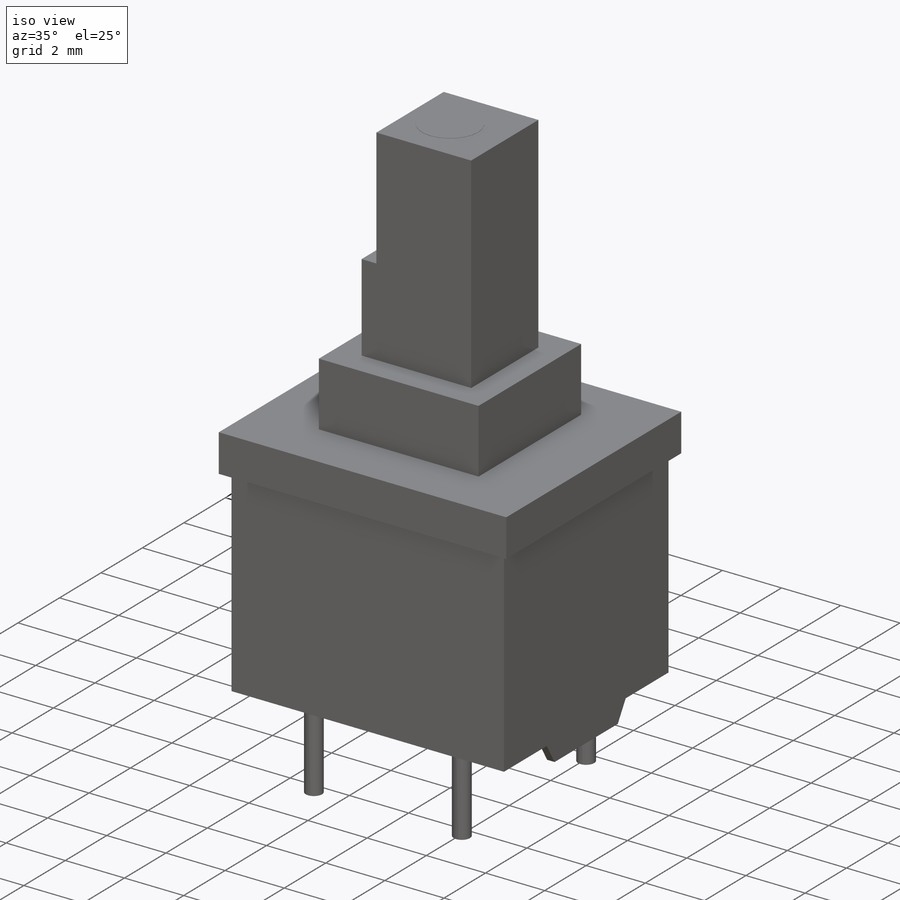
[diagram: iso view]
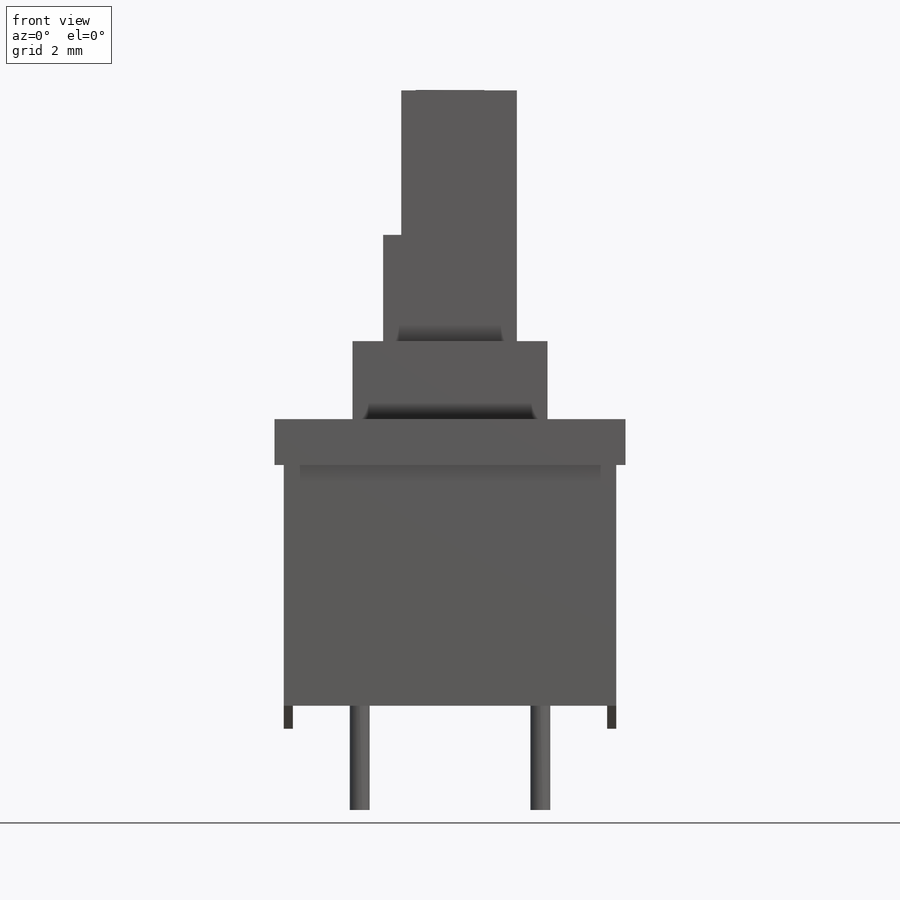
[diagram: front view]
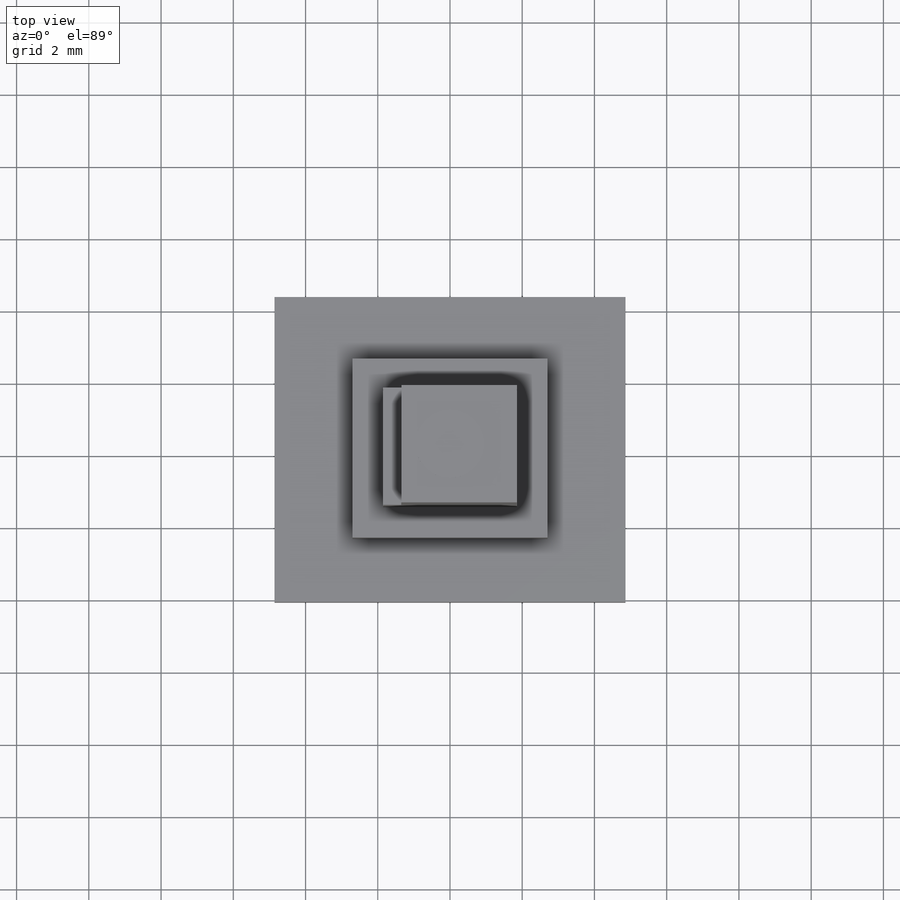
[diagram: top view]
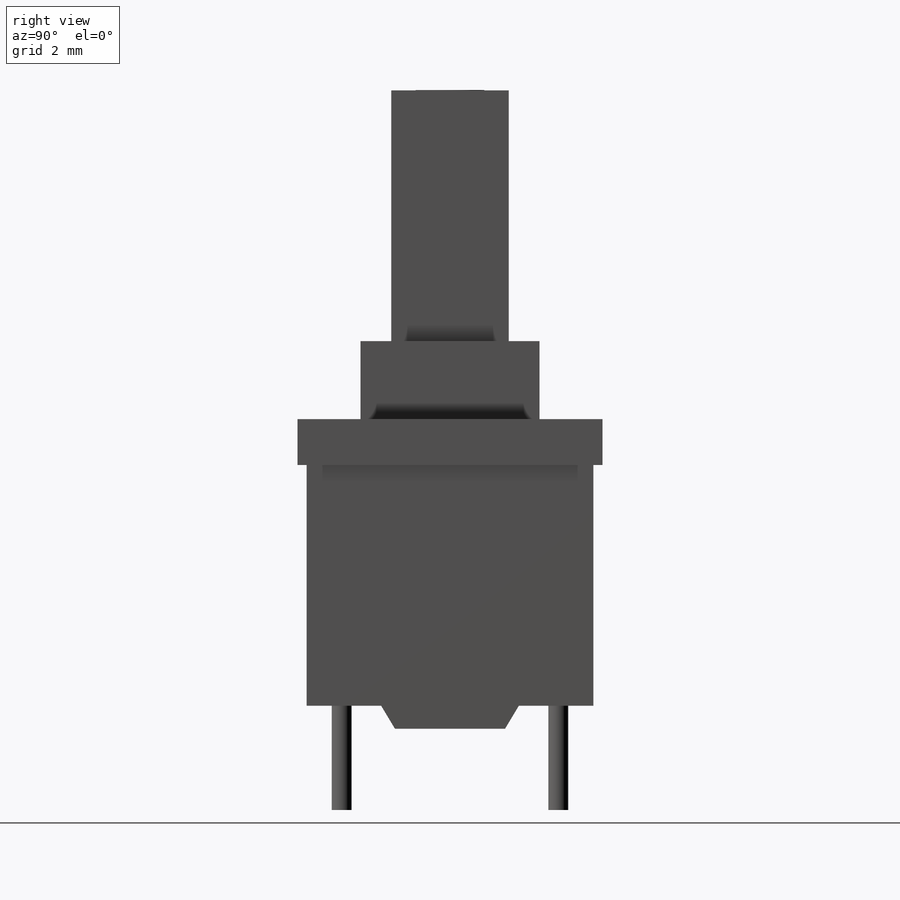
[diagram: right view]
SOLIDWORKS PART (.sldprt)
format: sldprt  version: not decoded by parser v0  size: 366,080 bytes
history: native  units: mm
features: sketch x9, extrude x7, cut_extrude x2, material x1, mirror x1 (+11 scaffold rows collapsed)
feature tree (31):
  scaffold x11  (default folders/planes/origin — collapsed)
  material  "Material <not specified>"
  sketch  "Sketch1"  dims[D1=9.2075mm D2=7.9375mm]
  extrude  "Boss-Extrude1"  Depth=7.9375mm
  sketch  "Sketch2"  dims[D2=5.3975mm D3=4.953mm D1=0.0mm]
  extrude  "Boss-Extrude2"  Depth=2.159mm
  sketch  "Sketch3"  dims[D2=3.72mm D3=3.26mm D1=0.0mm]
  cut_extrude  "Cut-Extrude1"  Depth=1.778mm
  sketch  "Sketch4"  dims[D1=0.254mm]
  extrude  "Boss-Extrude3"  Depth=1.27mm
  sketch  "Sketch5"  dims[D2=3.048mm D3=0.635mm D4=3.81mm D1=0.0mm]
  extrude  "Boss-Extrude4"  Depth=0.254mm
  mirror  "Mirror1"
  sketch  "Sketch7"  dims[D1=3.7mm D2=3.25mm]
  extrude  "Boss-Extrude6"  Depth=8.72mm
  sketch  "Sketch8"  dims[D2=3.2mm D1=0.0mm]
  cut_extrude  "Cut-Extrude2"  Depth=4mm
  sketch  "Sketch6"  dims[D2=1.905mm D1=0.0mm]
  extrude  "Boss-Extrude5"  Depth=0.01mm
  sketch  "Sketch9"  dims[c1.D3=0.55mm c1.D1=~3.087011mm c1.D2=6.0mm c2.D1=5.0mm]
  extrude  "Boss-Extrude7"  Depth=2.885mm
decode coverage: 18 of 19 modeling features carry decoded parameters
note: ~ marks probable driven/reference dimensions
note: suppression state not decoded; provenance and decode notes live in map.json
